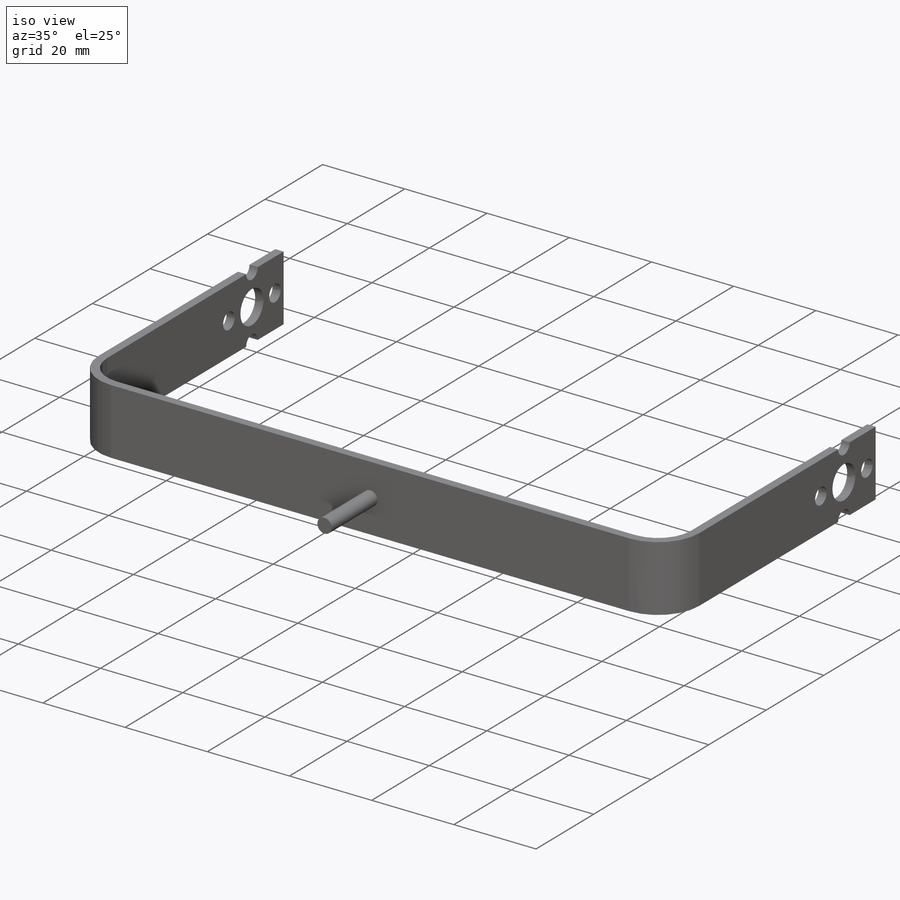
[diagram: iso view]
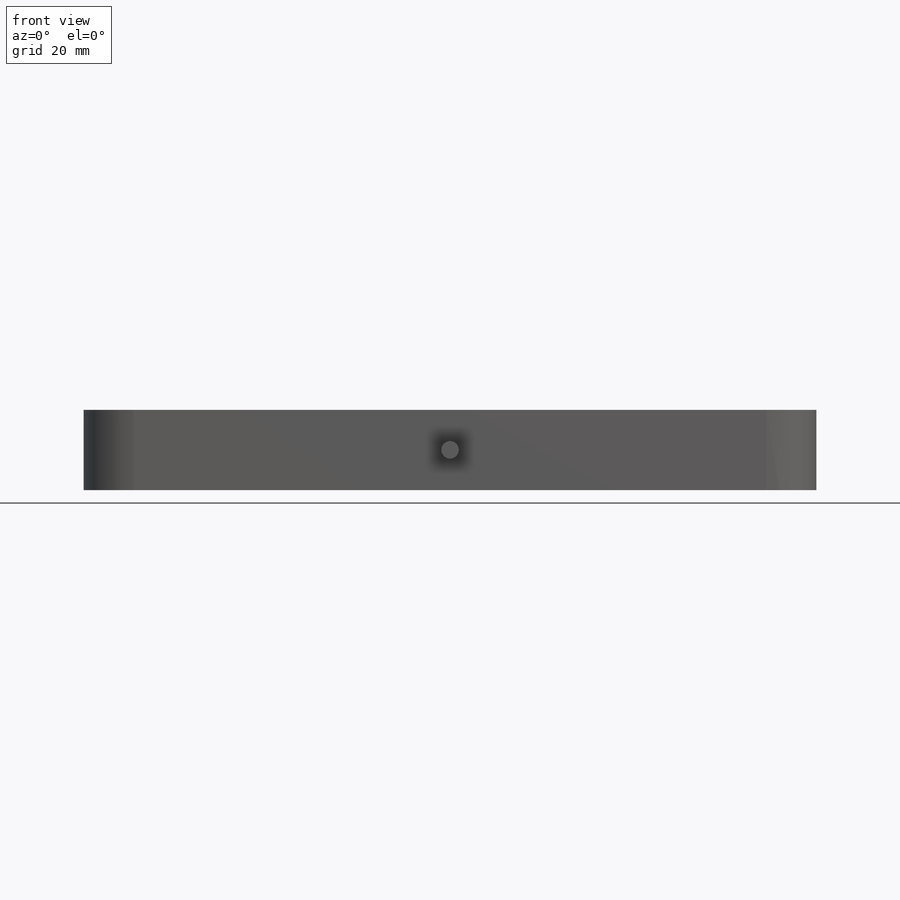
[diagram: front view]
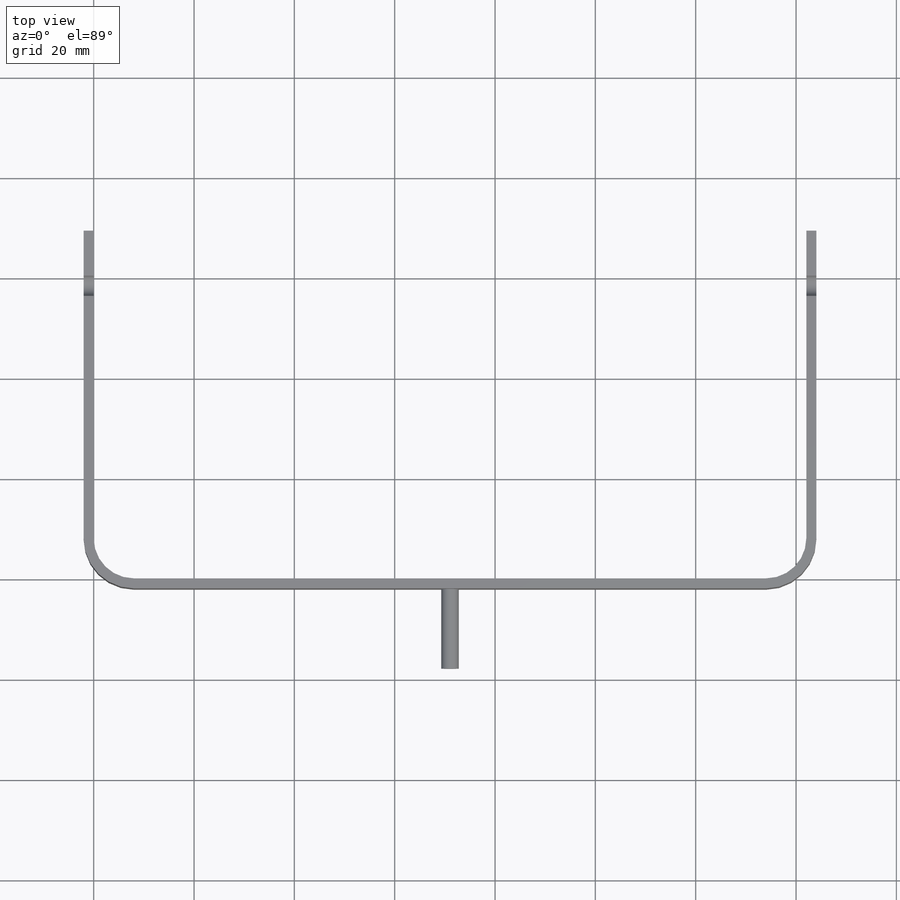
[diagram: top view]
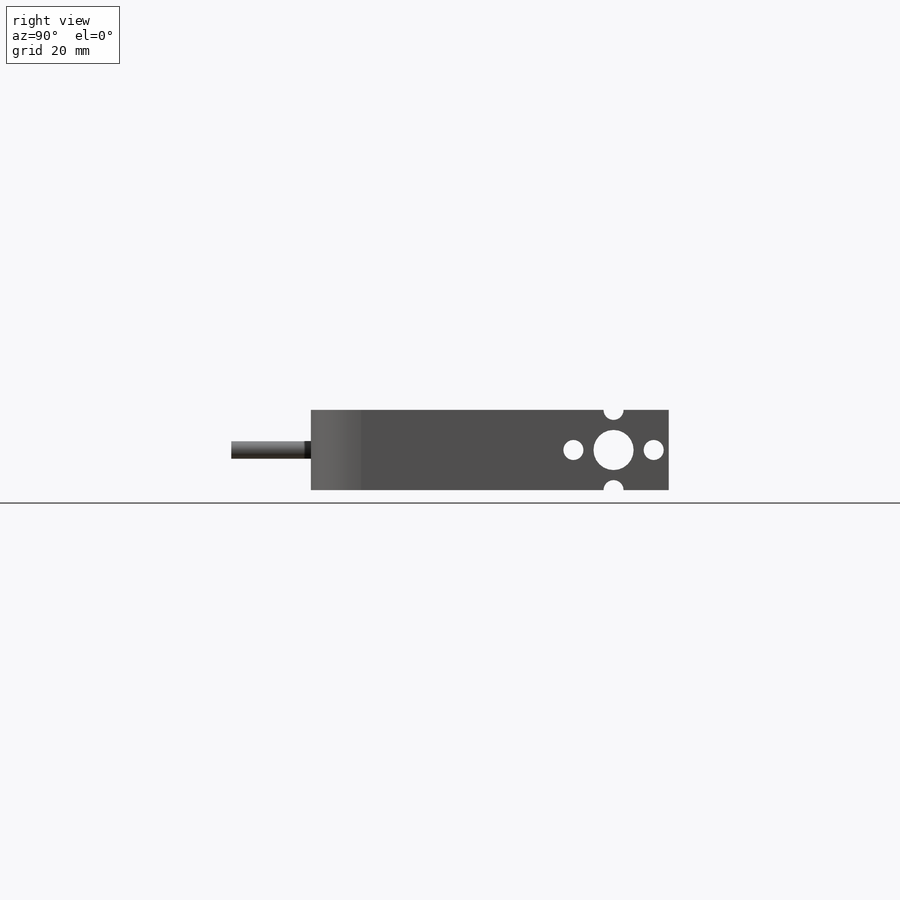
[diagram: right view]
SOLIDWORKS PART (.sldprt)
format: sldprt  version: not decoded by parser v0  size: 187,904 bytes
history: native  units: mm
features: sketch x3, extrude x2, fillet x2, material x1, cut_extrude x1 (+13 scaffold rows collapsed)
feature tree (22):
  scaffold x13  (default folders/planes/origin — collapsed)
  material  "6061-T6 (SS)"
  sketch  "Sketch1"  dims[D1=2.0mm D2=146.05mm D3=71.325mm]
  extrude  "Boss-Extrude1"  Depth=16mm
  fillet  "Fillet1"  Radius=8mm
  fillet  "Fillet2"  Radius=10mm
  sketch  "Sketch2"  dims[D1=8.0mm D3=4.0mm D2=60.325mm D4=8.0mm D5=4.0]
  cut_extrude  "Cut-Extrude1"  [1 undecoded]
  sketch  "Sketch3"  dims[D1=3.5mm]
  extrude  "Boss-Extrude2"  Depth=15.875mm
decode coverage: 7 of 8 modeling features carry decoded parameters
note: 1 parameter value undecoded
note: suppression state not decoded; provenance and decode notes live in map.json
